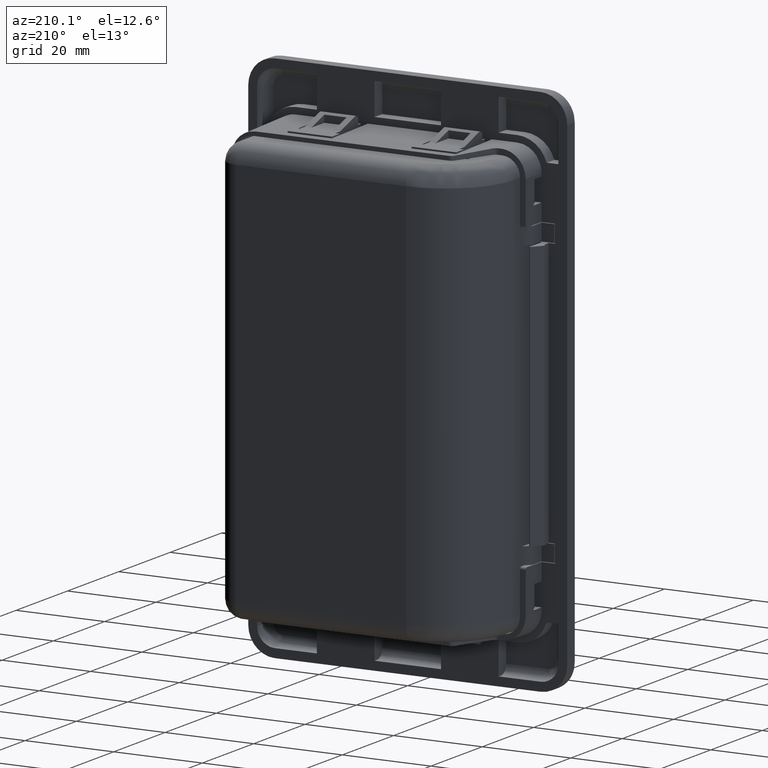
[diagram: clean part render]
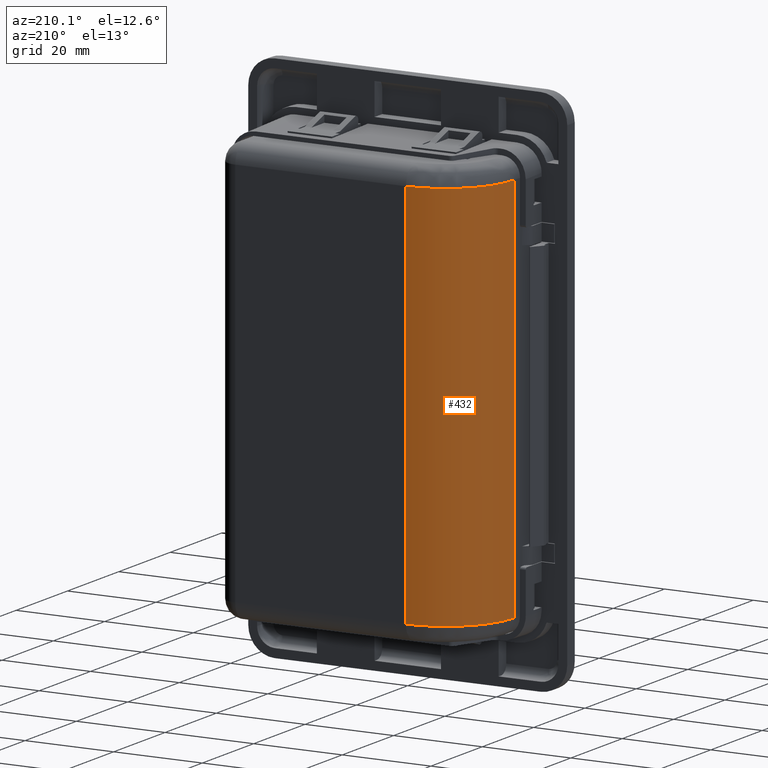
[diagram: same view with one face highlighted and labeled with its STEP entity id]
A machine part, auxiliary view. The second image highlights one B-rep face of the part: STEP entity #432.
In plain terms, the highlighted cylindrical surface (partial cylindrical patch) has radius 15.5 mm, axis along (-0, 0, -1).
Its self-contained STEP definition (entity closure, byte-faithful):
#432=ADVANCED_FACE('',(#4964),#4963,.T.);
#4963=CYLINDRICAL_SURFACE('',#12924,1.55000000000E+001);
#4964=FACE_OUTER_BOUND('',#12925,.T.);
#12921=CARTESIAN_POINT('',(-1.31999999998E+001,8.00000000000E+000,-9.52200000000E+002));
#12922=DIRECTION('',(-0.00000000000E+000,0.00000000000E+000,-1.00000000000E+000));
#12923=DIRECTION('',(-1.00000000000E+000,-0.00000000000E+000,-0.00000000000E+000));
#12924=AXIS2_PLACEMENT_3D('',#12921,#12922,#12923);
#12925=EDGE_LOOP('',(#20942,#20943,#20944,#20945));
#20942=ORIENTED_EDGE('',*,*,#25249,.T.);
#20943=ORIENTED_EDGE('',*,*,#25172,.T.);
#20944=ORIENTED_EDGE('',*,*,#25254,.F.);
#20945=ORIENTED_EDGE('',*,*,#25255,.T.);
#25172=EDGE_CURVE('',#36282,#36310,#36317,.T.);
#25249=EDGE_CURVE('',#26045,#36282,#36829,.T.);
#25254=EDGE_CURVE('',#36861,#36310,#36862,.T.);
#25255=EDGE_CURVE('',#36861,#26045,#36868,.T.);
#26045=VERTEX_POINT('',#41795);
#36282=VERTEX_POINT('',#47924);
#36310=VERTEX_POINT('',#47963);
#36317=CIRCLE('',#47971,1.55000000000E+001);
#36829=LINE('',#48266,#48267);
#36861=VERTEX_POINT('',#48282);
#36862=LINE('',#48283,#48284);
#36868=CIRCLE('',#48289,1.55000000000E+001);
#41795=CARTESIAN_POINT('',(-2.86999999998E+001,7.99999999982E+000,-4.37999999999E+001));
#47924=CARTESIAN_POINT('',(-2.86999999998E+001,7.99999999982E+000,4.38000000001E+001));
#47963=CARTESIAN_POINT('',(-1.31999999998E+001,2.35000000000E+001,4.38000000001E+001));
#47968=CARTESIAN_POINT('',(-1.31999999998E+001,8.00000000000E+000,4.38000000001E+001));
#47969=DIRECTION('',(0.00000000000E+000,0.00000000000E+000,-1.00000000000E+000));
#47970=DIRECTION('',(1.00000000000E+000,-0.00000000000E+000,-0.00000000000E+000));
#47971=AXIS2_PLACEMENT_3D('',#47968,#47969,#47970);
#48266=CARTESIAN_POINT('',(-2.86999999998E+001,7.99999999982E+000,-4.37999999999E+001));
#48267=VECTOR('',#48268,8.76000000000E+001);
#48268=DIRECTION('',(0.00000000000E+000,0.00000000000E+000,1.00000000000E+000));
#48282=CARTESIAN_POINT('',(-1.31999999998E+001,2.35000000000E+001,-4.37999999999E+001));
#48283=CARTESIAN_POINT('',(-1.31999999998E+001,2.35000000000E+001,-4.37999999999E+001));
#48284=VECTOR('',#48285,8.76000000000E+001);
#48285=DIRECTION('',(0.00000000000E+000,0.00000000000E+000,1.00000000000E+000));
#48286=CARTESIAN_POINT('',(-1.31999999998E+001,8.00000000000E+000,-4.37999999999E+001));
#48287=DIRECTION('',(0.00000000000E+000,-0.00000000000E+000,1.00000000000E+000));
#48288=DIRECTION('',(1.00000000000E+000,-0.00000000000E+000,-0.00000000000E+000));
#48289=AXIS2_PLACEMENT_3D('',#48286,#48287,#48288);